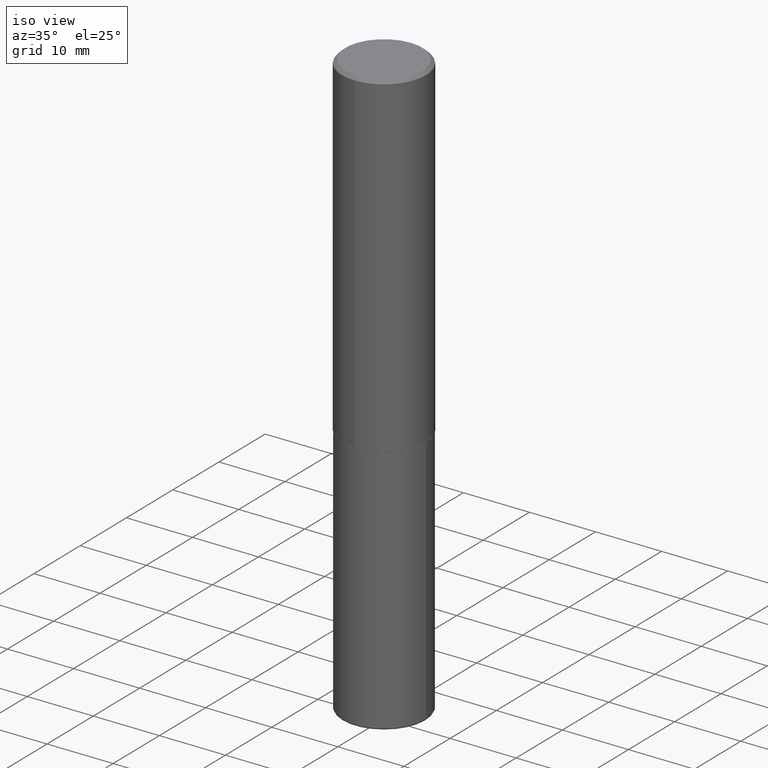
[diagram: clean part render]
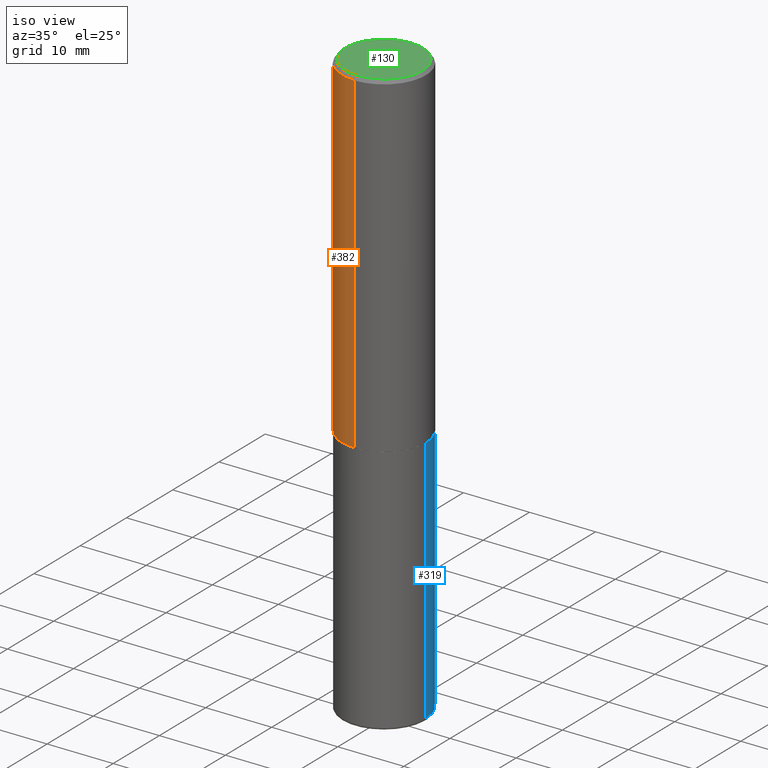
[diagram: same view with three faces highlighted in distinct colors, each labeled with its STEP entity id]
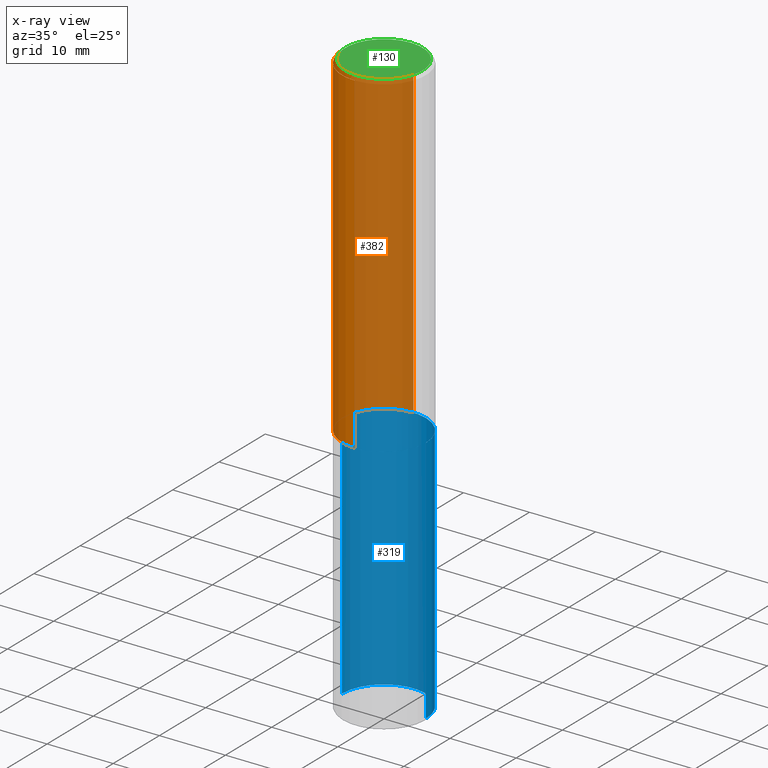
[diagram: x-ray of the same camera — body ghosted, the three highlighted faces saturated]
A machine part, iso view with three faces highlighted in distinct colors.
The next image is the same camera in x-ray (body ghosted, the three faces saturated) — at least one of them is partly hidden behind the body in this view.
Their STEP definitions:

[orange] entity #382 — the highlighted cylindrical surface (partial cylindrical patch) has radius 6.35 mm, axis along (-0, 0, 1).
#5 = CARTESIAN_POINT ( 'NONE',  ( 4.891474366573836672E-31, -6.982194015116674235E-17, -0.02000000000000005593 ) ) ;
#23 = VERTEX_POINT ( 'NONE', #216 ) ;
#31 = CIRCLE ( 'NONE', #43, 0.2500000000000000000 ) ;
#33 = CARTESIAN_POINT ( 'NONE',  ( -1.745740669421519543E-15, -0.2500000000000072164, -1.998999999999998778 ) ) ;
#37 = EDGE_CURVE ( 'NONE', #334, #183, #335, .T. ) ;
#43 = AXIS2_PLACEMENT_3D ( 'NONE', #5, #161, #70 ) ;
#48 = LINE ( 'NONE', #242, #410 ) ;
#50 = AXIS2_PLACEMENT_3D ( 'NONE', #387, #93, #303 ) ;
#52 = EDGE_CURVE ( 'NONE', #89, #23, #31, .T. ) ;
#70 = DIRECTION ( 'NONE',  ( -6.982962677686265922E-15, -1.000000000000000000, 3.483106191921935554E-15 ) ) ;
#81 = DIRECTION ( 'NONE',  ( -2.445737183286911680E-29, 3.491097007558327602E-15, 1.000000000000000000 ) ) ;
#89 = VERTEX_POINT ( 'NONE', #359 ) ;
#93 = DIRECTION ( 'NONE',  ( -2.445737183286911680E-29, 3.491097007558327602E-15, 1.000000000000000000 ) ) ;
#96 = LINE ( 'NONE', #254, #362 ) ;
#98 = AXIS2_PLACEMENT_3D ( 'NONE', #177, #375, #383 ) ;
#149 = EDGE_CURVE ( 'NONE', #183, #23, #96, .T. ) ;
#161 = DIRECTION ( 'NONE',  ( -2.445737183286911680E-29, 3.491097007558327602E-15, 1.000000000000000000 ) ) ;
#171 = FACE_OUTER_BOUND ( 'NONE', #240, .T. ) ;
#177 = CARTESIAN_POINT ( 'NONE',  ( 0.000000000000000000, 0.000000000000000000, 0.000000000000000000 ) ) ;
#180 = ORIENTED_EDGE ( 'NONE', *, *, #149, .T. ) ;
#183 = VERTEX_POINT ( 'NONE', #33 ) ;
#203 = ORIENTED_EDGE ( 'NONE', *, *, #52, .F. ) ;
#216 = CARTESIAN_POINT ( 'NONE',  ( -1.715124499442882299E-15, -0.2500000000000000555, -0.01999999999999918510 ) ) ;
#240 = EDGE_LOOP ( 'NONE', ( #281, #257, #180, #203 ) ) ;
#242 = CARTESIAN_POINT ( 'NONE',  ( 1.776356839400251254E-15, 0.2500000000000001110, -8.727742518895823935E-16 ) ) ;
#254 = CARTESIAN_POINT ( 'NONE',  ( -1.745740669421567467E-15, -0.2500000000000001110, 8.727742518895823935E-16 ) ) ;
#257 = ORIENTED_EDGE ( 'NONE', *, *, #37, .T. ) ;
#259 = CARTESIAN_POINT ( 'NONE',  ( 1.776356839400276103E-15, 0.2499999999999933109, -1.999000000000000554 ) ) ;
#268 = EDGE_CURVE ( 'NONE', #334, #89, #48, .T. ) ;
#281 = ORIENTED_EDGE ( 'NONE', *, *, #268, .F. ) ;
#303 = DIRECTION ( 'NONE',  ( -6.982962677686265922E-15, -1.000000000000000000, 3.278217592397112312E-15 ) ) ;
#317 = DIRECTION ( 'NONE',  ( -2.445737183286911680E-29, 3.491097007558327602E-15, 1.000000000000000000 ) ) ;
#334 = VERTEX_POINT ( 'NONE', #259 ) ;
#335 = CIRCLE ( 'NONE', #50, 0.2500000000000002776 ) ;
#359 = CARTESIAN_POINT ( 'NONE',  ( 1.745740669421566875E-15, 0.2499999999999999167, -0.02000000000000092676 ) ) ;
#362 = VECTOR ( 'NONE', #317, 39.37007874015748143 ) ;
#373 = CYLINDRICAL_SURFACE ( 'NONE', #98, 0.2500000000000001110 ) ;
#375 = DIRECTION ( 'NONE',  ( -2.445737183286911680E-29, 3.491097007558327602E-15, 1.000000000000000000 ) ) ;
#382 = ADVANCED_FACE ( 'NONE', ( #171 ), #373, .T. ) ;
#383 = DIRECTION ( 'NONE',  ( -6.982962677686266711E-15, -1.000000000000000000, 3.491097007558327996E-15 ) ) ;
#387 = CARTESIAN_POINT ( 'NONE',  ( 4.889028629390535480E-29, -6.978702918109095527E-15, -1.998999999999999666 ) ) ;
#410 = VECTOR ( 'NONE', #81, 39.37007874015748143 ) ;

[blue] entity #319 — the highlighted cylindrical surface (partial cylindrical patch) has radius 6.35 mm, axis along (-0, 0, 1).
#12 = DIRECTION ( 'NONE',  ( 1.000000000000000000, -6.982962677686262766E-15, 0.000000000000000000 ) ) ;
#20 = CARTESIAN_POINT ( 'NONE',  ( 0.2499999999999999167, -1.391355313528992618E-14, -3.484999999999999432 ) ) ;
#28 = EDGE_CURVE ( 'NONE', #30, #246, #91, .T. ) ;
#30 = VERTEX_POINT ( 'NONE', #344 ) ;
#47 = DIRECTION ( 'NONE',  ( -2.445468806185136597E-29, 3.491481338843145583E-15, 1.000000000000000000 ) ) ;
#64 = AXIS2_PLACEMENT_3D ( 'NONE', #236, #263, #374 ) ;
#67 = LINE ( 'NONE', #230, #274 ) ;
#77 = CIRCLE ( 'NONE', #415, 0.2500000000000000000 ) ;
#82 = CARTESIAN_POINT ( 'NONE',  ( 8.522458789555200771E-29, -1.216781246586836108E-14, -3.484999999999999432 ) ) ;
#84 = AXIS2_PLACEMENT_3D ( 'NONE', #223, #227, #353 ) ;
#91 = LINE ( 'NONE', #414, #298 ) ;
#113 = FACE_OUTER_BOUND ( 'NONE', #279, .T. ) ;
#137 = CYLINDRICAL_SURFACE ( 'NONE', #64, 0.2500000000000000000 ) ;
#162 = EDGE_CURVE ( 'NONE', #178, #246, #261, .T. ) ;
#178 = VERTEX_POINT ( 'NONE', #327 ) ;
#179 = EDGE_CURVE ( 'NONE', #332, #178, #67, .T. ) ;
#192 = DIRECTION ( 'NONE',  ( -2.445468806185136877E-29, 3.491481338843145188E-15, 1.000000000000000000 ) ) ;
#223 = CARTESIAN_POINT ( 'NONE',  ( 4.890937612370272633E-29, -6.982962677686290376E-15, -1.999999999999999778 ) ) ;
#227 = DIRECTION ( 'NONE',  ( -2.445468806185136597E-29, 3.491481338843145583E-15, 1.000000000000000000 ) ) ;
#230 = CARTESIAN_POINT ( 'NONE',  ( 0.2500000000000000000, -1.745740669421566678E-15, 1.219044193948983948E-29 ) ) ;
#235 = ORIENTED_EDGE ( 'NONE', *, *, #280, .T. ) ;
#236 = CARTESIAN_POINT ( 'NONE',  ( 0.000000000000000000, 0.000000000000000000, 0.000000000000000000 ) ) ;
#246 = VERTEX_POINT ( 'NONE', #304 ) ;
#261 = CIRCLE ( 'NONE', #84, 0.2500000000000000000 ) ;
#263 = DIRECTION ( 'NONE',  ( -2.445468806185136597E-29, 3.491481338843145583E-15, 1.000000000000000000 ) ) ;
#274 = VECTOR ( 'NONE', #192, 39.37007874015748143 ) ;
#279 = EDGE_LOOP ( 'NONE', ( #235, #350, #346, #338 ) ) ;
#280 = EDGE_CURVE ( 'NONE', #332, #30, #77, .T. ) ;
#298 = VECTOR ( 'NONE', #348, 39.37007874015748143 ) ;
#304 = CARTESIAN_POINT ( 'NONE',  ( -0.2500000000000000000, -7.799030732377074474E-15, -1.999999999999999778 ) ) ;
#319 = ADVANCED_FACE ( 'NONE', ( #113 ), #137, .T. ) ;
#327 = CARTESIAN_POINT ( 'NONE',  ( 0.2500000000000000000, -8.728703347107857054E-15, -1.999999999999999778 ) ) ;
#332 = VERTEX_POINT ( 'NONE', #20 ) ;
#338 = ORIENTED_EDGE ( 'NONE', *, *, #179, .F. ) ;
#344 = CARTESIAN_POINT ( 'NONE',  ( -0.2499999999999999167, -1.039145562646811219E-14, -3.484999999999999432 ) ) ;
#346 = ORIENTED_EDGE ( 'NONE', *, *, #162, .F. ) ;
#348 = DIRECTION ( 'NONE',  ( -2.445468806185136877E-29, 3.491481338843145188E-15, 1.000000000000000000 ) ) ;
#350 = ORIENTED_EDGE ( 'NONE', *, *, #28, .T. ) ;
#353 = DIRECTION ( 'NONE',  ( 1.000000000000000000, -6.982962677686266711E-15, 0.000000000000000000 ) ) ;
#374 = DIRECTION ( 'NONE',  ( 1.000000000000000000, -6.982962677686266711E-15, 4.876176775795935793E-29 ) ) ;
#414 = CARTESIAN_POINT ( 'NONE',  ( -0.2500000000000000000, 1.776356839400250465E-15, -1.229733772563726445E-29 ) ) ;
#415 = AXIS2_PLACEMENT_3D ( 'NONE', #82, #47, #12 ) ;

[green] entity #130 — the highlighted planar face has unit normal (0, -0, -1).
#41 = DIRECTION ( 'NONE',  ( -6.982962677686265922E-15, -1.000000000000000000, 3.491097007558327207E-15 ) ) ;
#44 = CARTESIAN_POINT ( 'NONE',  ( 1.675911042644703774E-15, 0.2299999999999999822, -8.286517828745257562E-16 ) ) ;
#59 = ORIENTED_EDGE ( 'NONE', *, *, #360, .T. ) ;
#62 = CARTESIAN_POINT ( 'NONE',  ( 6.285415214839433991E-46, -8.971934677910720830E-32, -2.569947113611056727E-17 ) ) ;
#72 = DIRECTION ( 'NONE',  ( -2.445737183286911680E-29, 3.491097007558327602E-15, 1.000000000000000000 ) ) ;
#97 = DIRECTION ( 'NONE',  ( -6.982962677686265922E-15, -1.000000000000000000, 3.491097007558327207E-15 ) ) ;
#130 = ADVANCED_FACE ( 'NONE', ( #285 ), #258, .F. ) ;
#147 = VERTEX_POINT ( 'NONE', #389 ) ;
#167 = EDGE_CURVE ( 'NONE', #147, #247, #318, .T. ) ;
#204 = AXIS2_PLACEMENT_3D ( 'NONE', #62, #229, #97 ) ;
#214 = AXIS2_PLACEMENT_3D ( 'NONE', #364, #72, #41 ) ;
#229 = DIRECTION ( 'NONE',  ( -2.445737183286911680E-29, 3.491097007558327602E-15, 1.000000000000000000 ) ) ;
#247 = VERTEX_POINT ( 'NONE', #44 ) ;
#258 = PLANE ( 'NONE',  #393 ) ;
#262 = CIRCLE ( 'NONE', #214, 0.2299999999999999822 ) ;
#275 = EDGE_LOOP ( 'NONE', ( #59, #324 ) ) ;
#285 = FACE_OUTER_BOUND ( 'NONE', #275, .T. ) ;
#294 = DIRECTION ( 'NONE',  ( 2.445737183286911400E-29, -3.491097007558327602E-15, -1.000000000000000000 ) ) ;
#318 = CIRCLE ( 'NONE', #204, 0.2299999999999999822 ) ;
#324 = ORIENTED_EDGE ( 'NONE', *, *, #167, .T. ) ;
#360 = EDGE_CURVE ( 'NONE', #247, #147, #262, .T. ) ;
#364 = CARTESIAN_POINT ( 'NONE',  ( 6.285415214839433991E-46, -8.971934677910720830E-32, -2.569947113611056727E-17 ) ) ;
#389 = CARTESIAN_POINT ( 'NONE',  ( -1.646519519465166968E-15, -0.2299999999999999822, 7.772528406023046093E-16 ) ) ;
#393 = AXIS2_PLACEMENT_3D ( 'NONE', #396, #294, #418 ) ;
#396 = CARTESIAN_POINT ( 'NONE',  ( 1.606081415867841067E-15, 0.2299999999999999822, -8.158020473064706174E-16 ) ) ;
#418 = DIRECTION ( 'NONE',  ( 6.982962677686265922E-15, 1.000000000000000000, -3.491097007558327602E-15 ) ) ;